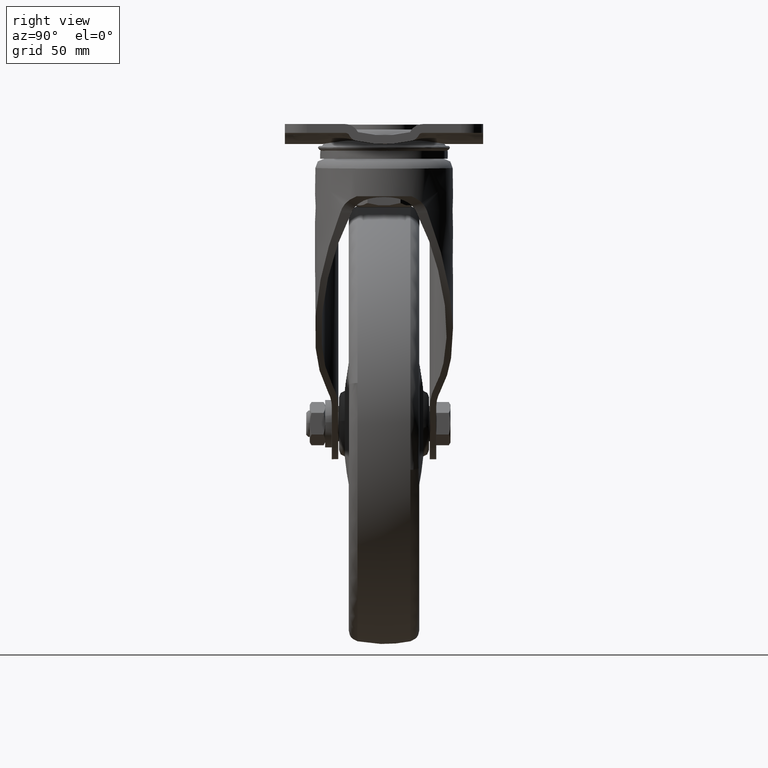
[diagram: clean part render]
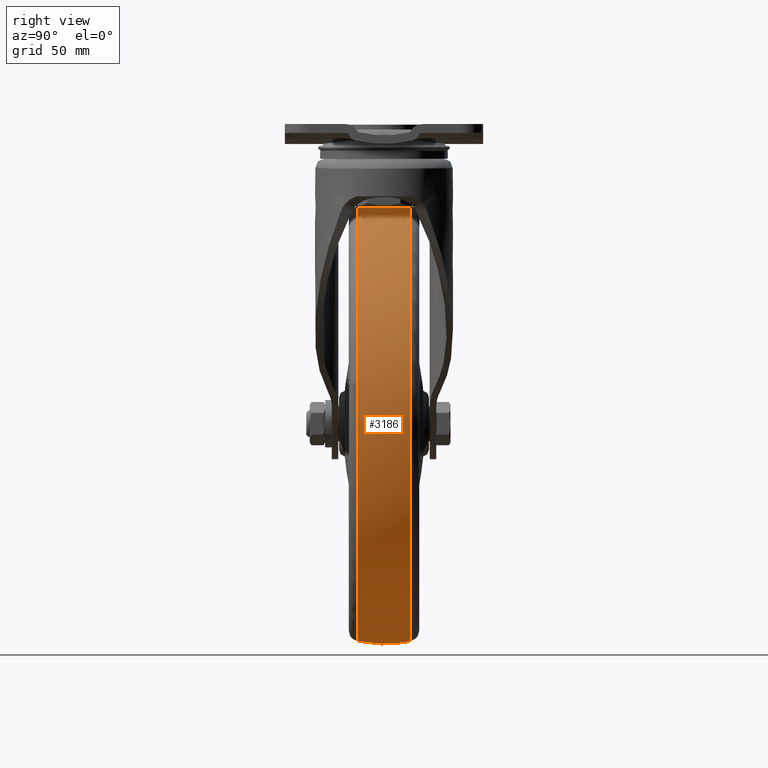
[diagram: same view with one face highlighted and labeled with its STEP entity id]
A machine part, right view. The second image highlights one B-rep face of the part: STEP entity #3186.
In plain terms, the highlighted face is a freeform B-spline surface patch.
Its self-contained STEP definition (entity closure, byte-faithful):
#2898=CARTESIAN_POINT('',(-53.0,-11.999999999998520,-234.516986826796510));
#2899=VERTEX_POINT('',#2898);
#2913=CARTESIAN_POINT('',(44.037951112125427,-12.000000000226221,-117.218253822893300));
#2914=VERTEX_POINT('',#2913);
#2915=CARTESIAN_POINT('',(-53.0,-11.999999999998520,-234.516986826796510));
#2916=CARTESIAN_POINT('',(45.787753826777340,-12.000000000093074,-234.516986826800120));
#2917=CARTESIAN_POINT('',(45.787753826754532,-12.000000000206620,-135.729233000007810));
#2918=CARTESIAN_POINT('',(45.787753826752372,-12.000000000217355,-126.391040883647650));
#2919=CARTESIAN_POINT('',(44.037951112125434,-12.000000000226215,-117.218253822893350));
#2927=(BOUNDED_CURVE()B_SPLINE_CURVE(2,(#2915,#2916,#2917,#2918,#2919),.UNSPECIFIED.,.F.,.U.)B_SPLINE_CURVE_WITH_KNOTS((3,2,3),(0.0,0.250000000000000,0.282161366259674),.UNSPECIFIED.)CURVE()GEOMETRIC_REPRESENTATION_ITEM()RATIONAL_B_SPLINE_CURVE((1.0,0.707106781186548,1.0,0.962320615659063,0.934335795159949))REPRESENTATION_ITEM(''));
#2928=EDGE_CURVE('',#2899,#2914,#2927,.T.);
#2990=CARTESIAN_POINT('',(-53.0,-11.999999999997030,-36.941479173203163));
#2991=VERTEX_POINT('',#2990);
#3011=CARTESIAN_POINT('',(44.037951112125434,-12.000000000226215,-117.218253822893350));
#3012=CARTESIAN_POINT('',(28.724337346452931,-12.000000000111323,-36.941479173207512));
#3013=CARTESIAN_POINT('',(-53.0,-11.999999999997030,-36.941479173203163));
#3021=(BOUNDED_CURVE()B_SPLINE_CURVE(2,(#3011,#3012,#3013),.UNSPECIFIED.,.F.,.U.)B_SPLINE_CURVE_WITH_KNOTS((3,3),(0.282161366259674,0.500000000000000),.UNSPECIFIED.)CURVE()GEOMETRIC_REPRESENTATION_ITEM()RATIONAL_B_SPLINE_CURVE((0.934335795159949,0.744786165527485,1.0))REPRESENTATION_ITEM(''));
#3022=EDGE_CURVE('',#2914,#2991,#3021,.T.);
#3056=CARTESIAN_POINT('',(-53.0,11.999999961965470,-36.941479165439951));
#3057=VERTEX_POINT('',#3056);
#3058=CARTESIAN_POINT('',(-52.999999999999993,-11.999999999997035,-36.941479173203128));
#3059=CARTESIAN_POINT('',(-52.999999999999986,-0.000000019808114,-34.491989434464500));
#3060=CARTESIAN_POINT('',(-53.000000000000007,11.999999961965454,-36.941479165439965));
#3068=(BOUNDED_CURVE()B_SPLINE_CURVE(2,(#3058,#3059,#3060),.UNSPECIFIED.,.F.,.U.)B_SPLINE_CURVE_WITH_KNOTS((3,3),(0.458261283577760,0.541738716287229),.UNSPECIFIED.)CURVE()GEOMETRIC_REPRESENTATION_ITEM()RATIONAL_B_SPLINE_CURVE((0.868829938584044,0.851276009142221,0.868829938527263))REPRESENTATION_ITEM(''));
#3069=EDGE_CURVE('',#2991,#3057,#3068,.T.);
#3086=CARTESIAN_POINT('',(-53.0,11.999999961965480,-234.516986834559990));
#3087=VERTEX_POINT('',#3086);
#3103=CARTESIAN_POINT('',(-52.999999999999993,-11.999999999998538,-234.516986826796600));
#3104=CARTESIAN_POINT('',(-52.999999999999993,-0.000000019808878,-236.966476565535660));
#3105=CARTESIAN_POINT('',(-53.000000000000014,11.999999961965489,-234.516986834560040));
#3113=(BOUNDED_CURVE()B_SPLINE_CURVE(2,(#3103,#3104,#3105),.UNSPECIFIED.,.F.,.U.)B_SPLINE_CURVE_WITH_KNOTS((3,3),(0.458261283577755,0.541738716287229),.UNSPECIFIED.)CURVE()GEOMETRIC_REPRESENTATION_ITEM()RATIONAL_B_SPLINE_CURVE((0.868829938584046,0.851276009142220,0.868829938527263))REPRESENTATION_ITEM(''));
#3114=EDGE_CURVE('',#2899,#3087,#3113,.T.);
#3121=CARTESIAN_POINT('',(-55.754760484216284,-13.170888441886470,-234.265783100355090));
#3122=CARTESIAN_POINT('',(-55.837609883980193,-0.000004381945792,-237.229269064886610));
#3123=CARTESIAN_POINT('',(-55.754760536687741,13.170880100298078,-234.265784977235340));
#3124=CARTESIAN_POINT('',(-54.385401759798242,-13.170888441886461,-234.265783100355090));
#3125=CARTESIAN_POINT('',(-54.427067706761243,-0.000004381945792,-237.229269064886640));
#3126=CARTESIAN_POINT('',(-54.385401786186762,13.170880100298072,-234.265784977235260));
#3127=CARTESIAN_POINT('',(45.536550100355072,-13.170888441886467,-234.265783100355070));
#3128=CARTESIAN_POINT('',(48.500036064886615,-0.000004381945791,-237.229269064886580));
#3129=CARTESIAN_POINT('',(45.536551977235312,13.170880100298081,-234.265784977235340));
#3130=CARTESIAN_POINT('',(45.536550100355065,-13.170888441886465,-135.729232999999940));
#3131=CARTESIAN_POINT('',(48.500036064886615,-0.000004381945792,-135.729233000000050));
#3132=CARTESIAN_POINT('',(45.536551977235320,13.170880100298078,-135.729232999999940));
#3133=CARTESIAN_POINT('',(45.536550100355072,-13.170888441886467,-37.192682899644950));
#3134=CARTESIAN_POINT('',(48.500036064886615,-0.000004381945791,-34.229196935113414));
#3135=CARTESIAN_POINT('',(45.536551977235312,13.170880100298081,-37.192681022764688));
#3136=CARTESIAN_POINT('',(-54.385401759798242,-13.170888441886461,-37.192682899644922));
#3137=CARTESIAN_POINT('',(-54.427067706761243,-0.000004381945792,-34.229196935113379));
#3138=CARTESIAN_POINT('',(-54.385401786186762,13.170880100298072,-37.192681022764681));
#3139=CARTESIAN_POINT('',(-55.754760484216291,-13.170888441886468,-37.192682899644929));
#3140=CARTESIAN_POINT('',(-55.837609883980193,-0.000004381945792,-34.229196935113372));
#3141=CARTESIAN_POINT('',(-55.754760536687748,13.170880100298078,-37.192681022764660));
#3149=(BOUNDED_SURFACE()B_SPLINE_SURFACE(2,2,((#3121,#3124,#3127,#3130,#3133,#3136,#3139),(#3122,#3125,#3128,#3131,#3134,#3137,#3140),(#3123,#3126,#3129,#3132,#3135,#3138,#3141)),.UNSPECIFIED.,.F.,.F.,.U.)B_SPLINE_SURFACE_WITH_KNOTS((3,3),(3,1,2,1,3),(0.0,26.666983283726552),(0.0,3.313708498984791,168.999133448222490,334.684558397460190,337.998266896444990),.UNSPECIFIED.)GEOMETRIC_REPRESENTATION_ITEM()RATIONAL_B_SPLINE_SURFACE(((0.880871718098796,0.875771444463754,0.615657489076613,0.870671170828712,0.615657489076613,0.875771444463754,0.880871718098796),(0.859386531281695,0.854410657521931,0.600641095773957,0.849434783762167,0.600641095773957,0.854410657521931,0.859386531281695),(0.880871704151278,0.875771430596992,0.615657479328436,0.870671157042707,0.615657479328436,0.875771430596992,0.880871704151278)))REPRESENTATION_ITEM('')SURFACE());
#3150=ORIENTED_EDGE('',*,*,#3069,.F.);
#3151=ORIENTED_EDGE('',*,*,#3022,.F.);
#3152=ORIENTED_EDGE('',*,*,#2928,.F.);
#3153=ORIENTED_EDGE('',*,*,#3114,.T.);
#3154=CARTESIAN_POINT('',(43.542122817600990,11.999999962913201,-156.672939185347500));
#3155=VERTEX_POINT('',#3154);
#3156=CARTESIAN_POINT('',(-53.0,11.999999961965480,-234.516986834559990));
#3157=CARTESIAN_POINT('',(26.654749569670152,11.999999962439341,-234.516986834932510));
#3158=CARTESIAN_POINT('',(43.542122817600990,11.999999962913197,-156.672939185347500));
#3166=(BOUNDED_CURVE()B_SPLINE_CURVE(2,(#3156,#3157,#3158),.UNSPECIFIED.,.F.,.U.)B_SPLINE_CURVE_WITH_KNOTS((3,3),(0.0,0.213703258531894),.UNSPECIFIED.)CURVE()GEOMETRIC_REPRESENTATION_ITEM()RATIONAL_B_SPLINE_CURVE((1.0,0.749631058950681,0.927299386200715))REPRESENTATION_ITEM(''));
#3167=EDGE_CURVE('',#3087,#3155,#3166,.T.);
#3168=ORIENTED_EDGE('',*,*,#3167,.T.);
#3169=CARTESIAN_POINT('',(43.542122817600990,11.999999962913197,-156.672939185347500));
#3170=CARTESIAN_POINT('',(45.787753830081904,11.999999962872225,-146.321476882524450));
#3171=CARTESIAN_POINT('',(45.787753829897802,11.999999962821420,-135.729233000672790));
#3172=CARTESIAN_POINT('',(45.787753828180790,11.999999962347554,-36.941479165740297));
#3173=CARTESIAN_POINT('',(-53.0,11.999999961965470,-36.941479165439951));
#3181=(BOUNDED_CURVE()B_SPLINE_CURVE(2,(#3169,#3170,#3171,#3172,#3173),.UNSPECIFIED.,.F.,.U.)B_SPLINE_CURVE_WITH_KNOTS((3,2,3),(0.213703258531894,0.250000000000000,0.500000000000000),.UNSPECIFIED.)CURVE()GEOMETRIC_REPRESENTATION_ITEM()RATIONAL_B_SPLINE_CURVE((0.927299386200715,0.957475722235867,1.0,0.707106781186548,1.0))REPRESENTATION_ITEM(''));
#3182=EDGE_CURVE('',#3155,#3057,#3181,.T.);
#3183=ORIENTED_EDGE('',*,*,#3182,.T.);
#3184=EDGE_LOOP('',(#3150,#3151,#3152,#3153,#3168,#3183));
#3185=FACE_OUTER_BOUND('',#3184,.T.);
#3186=ADVANCED_FACE('',(#3185),#3149,.T.);